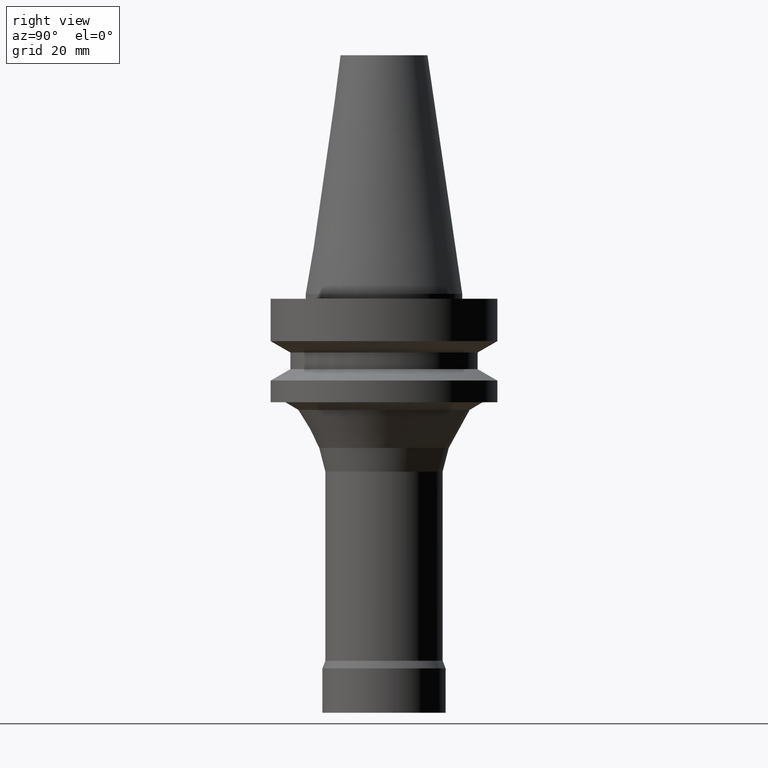
[diagram: clean part render]
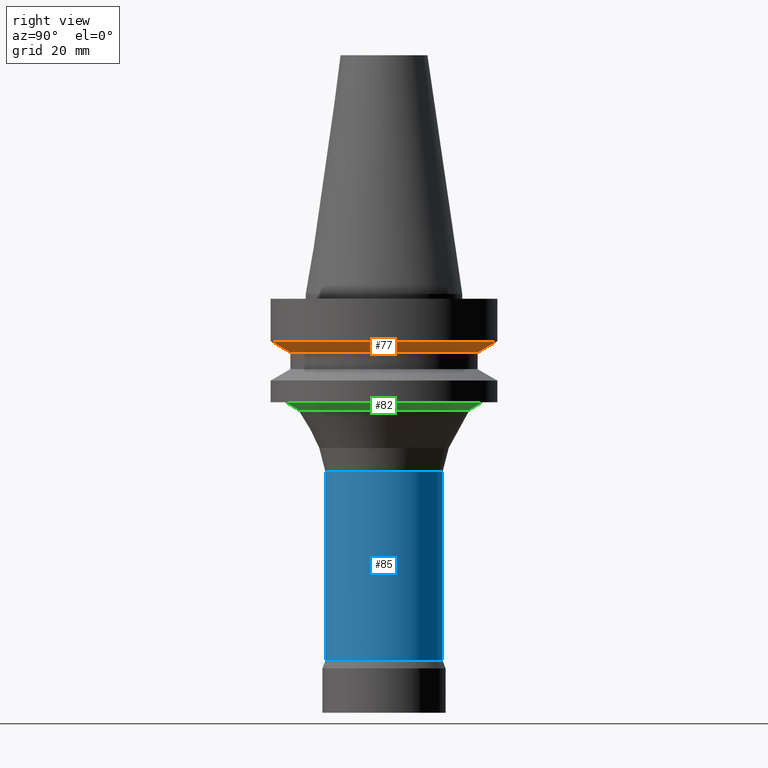
[diagram: same view with three faces highlighted in distinct colors, each labeled with its STEP entity id]
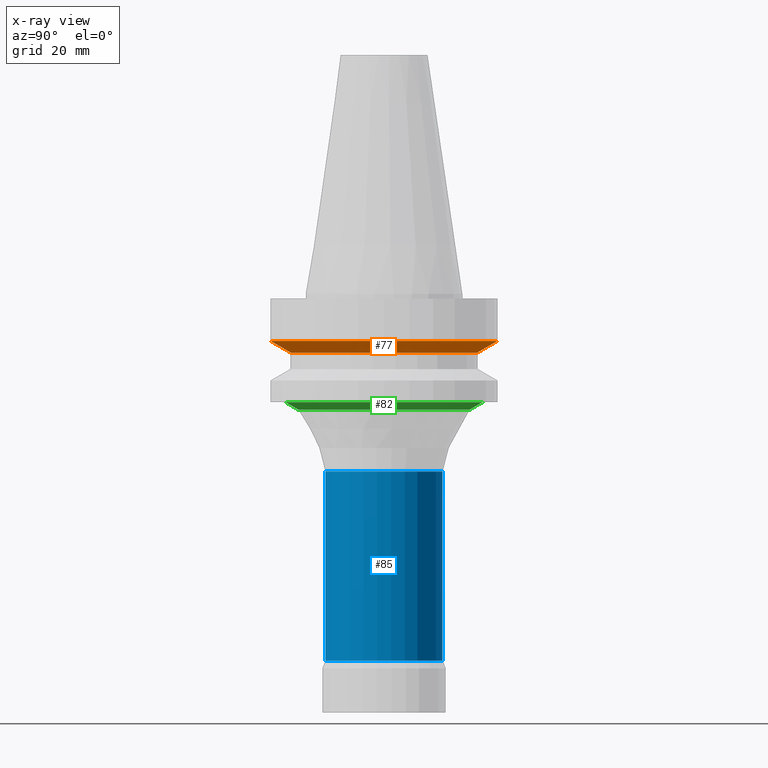
[diagram: x-ray of the same camera — body ghosted, the three highlighted faces saturated]
A machine part, right view with three faces highlighted in distinct colors.
The next image is the same camera in x-ray (body ghosted, the three faces saturated) — at least one of them is partly hidden behind the body in this view.
Their STEP definitions:

[orange] entity #77 — the highlighted conical surface has half-angle 60 deg.
#77=ADVANCED_FACE('',(#99,#100),#101,.T.);
#99=FACE_BOUND('',#148,.T.);
#100=FACE_BOUND('',#149,.T.);
#101=CONICAL_SURFACE('',#150,21.0,1.04719755058882);
#148=EDGE_LOOP('',(#201));
#149=EDGE_LOOP('',(#202));
#150=AXIS2_PLACEMENT_3D('',#203,#204,#205);
#201=ORIENTED_EDGE('',*,*,#277,.F.);
#202=ORIENTED_EDGE('',*,*,#276,.T.);
#203=CARTESIAN_POINT('',(6.58535479604966E-016,1.31707095920993E-015,-10.75470054));
#204=DIRECTION('',(-6.12323399573677E-017,-1.22464679914735E-016,1.0));
#205=DIRECTION('',(-1.23259516440783E-032,1.0,1.22464679914735E-016));
#276=EDGE_CURVE('',#294,#294,#295,.T.);
#277=EDGE_CURVE('',#296,#296,#297,.T.);
#294=VERTEX_POINT('',#326);
#295=CIRCLE('',#327,23.0);
#296=VERTEX_POINT('',#328);
#297=CIRCLE('',#329,19.0);
#326=CARTESIAN_POINT('',(5.87830463590729E-016,23.0,-9.6));
#327=AXIS2_PLACEMENT_3D('',#360,#361,#362);
#328=CARTESIAN_POINT('',(7.29240495619201E-016,19.0,-11.90940108));
#329=AXIS2_PLACEMENT_3D('',#363,#364,#365);
#360=CARTESIAN_POINT('',(5.8783046359073E-016,1.17566092718146E-015,-9.6));
#361=DIRECTION('',(6.12323399573677E-017,1.22464679914735E-016,-1.0));
#362=DIRECTION('',(-1.23259516440783E-032,1.0,1.22464679914735E-016));
#363=CARTESIAN_POINT('',(7.29240495619202E-016,1.4584809912384E-015,-11.90940108));
#364=DIRECTION('',(6.12323399573677E-017,1.22464679914735E-016,-1.0));
#365=DIRECTION('',(-1.23259516440783E-032,1.0,1.22464679914735E-016));

[blue] entity #85 — the highlighted cylindrical surface (bore or boss wall) has radius 11.9 mm, axis along (-0, -0, 1).
#85=ADVANCED_FACE('',(#123,#124),#125,.T.);
#123=FACE_BOUND('',#172,.T.);
#124=FACE_BOUND('',#173,.T.);
#125=CYLINDRICAL_SURFACE('',#174,11.9);
#172=EDGE_LOOP('',(#241));
#173=EDGE_LOOP('',(#242));
#174=AXIS2_PLACEMENT_3D('',#243,#244,#245);
#241=ORIENTED_EDGE('',*,*,#285,.F.);
#242=ORIENTED_EDGE('',*,*,#284,.T.);
#243=CARTESIAN_POINT('',(3.38368564258339E-015,6.76737128516678E-015,-55.259780125));
#244=DIRECTION('',(-6.12323399573677E-017,-1.22464679914735E-016,1.0));
#245=DIRECTION('',(-1.23259516440783E-032,1.0,1.22464679914735E-016));
#284=EDGE_CURVE('',#310,#310,#311,.T.);
#285=EDGE_CURVE('',#312,#312,#313,.T.);
#310=VERTEX_POINT('',#342);
#311=CIRCLE('',#343,11.9);
#312=VERTEX_POINT('',#344);
#313=CIRCLE('',#345,11.9);
#342=CARTESIAN_POINT('',(2.2085926824006E-015,11.9,-36.06905573));
#343=AXIS2_PLACEMENT_3D('',#384,#385,#386);
#344=CARTESIAN_POINT('',(4.55877860276618E-015,11.9,-74.45050452));
#345=AXIS2_PLACEMENT_3D('',#387,#388,#389);
#384=CARTESIAN_POINT('',(2.2085926824006E-015,4.4171853648012E-015,-36.06905573));
#385=DIRECTION('',(6.12323399573677E-017,1.22464679914735E-016,-1.0));
#386=DIRECTION('',(-1.23259516440783E-032,1.0,1.22464679914735E-016));
#387=CARTESIAN_POINT('',(4.55877860276618E-015,9.11755720553235E-015,-74.45050452));
#388=DIRECTION('',(6.12323399573677E-017,1.22464679914735E-016,-1.0));
#389=DIRECTION('',(-1.23259516440783E-032,1.0,1.22464679914735E-016));

[green] entity #82 — the highlighted conical surface has half-angle 59.408 deg.
#82=ADVANCED_FACE('',(#114,#115),#116,.T.);
#114=FACE_BOUND('',#163,.T.);
#115=FACE_BOUND('',#164,.T.);
#116=CONICAL_SURFACE('',#165,18.68574234,1.03686555591075);
#163=EDGE_LOOP('',(#226));
#164=EDGE_LOOP('',(#227));
#165=AXIS2_PLACEMENT_3D('',#228,#229,#230);
#226=ORIENTED_EDGE('',*,*,#282,.F.);
#227=ORIENTED_EDGE('',*,*,#281,.T.);
#228=CARTESIAN_POINT('',(1.39468910028212E-015,2.78937820056424E-015,-22.77700152));
#229=DIRECTION('',(-6.12323399573677E-017,-1.22464679914735E-016,1.0));
#230=DIRECTION('',(-1.23259516440783E-032,1.0,1.22464679914735E-016));
#281=EDGE_CURVE('',#304,#304,#305,.T.);
#282=EDGE_CURVE('',#306,#306,#307,.T.);
#304=VERTEX_POINT('',#336);
#305=CIRCLE('',#337,20.0);
#306=VERTEX_POINT('',#338);
#307=CIRCLE('',#339,17.37148468);
#336=CARTESIAN_POINT('',(1.34711147906209E-015,20.0,-22.0));
#337=AXIS2_PLACEMENT_3D('',#375,#376,#377);
#338=CARTESIAN_POINT('',(1.44226672150215E-015,17.37148468,-23.55400304));
#339=AXIS2_PLACEMENT_3D('',#378,#379,#380);
#375=CARTESIAN_POINT('',(1.34711147906209E-015,2.69422295812418E-015,-22.0));
#376=DIRECTION('',(6.12323399573677E-017,1.22464679914735E-016,-1.0));
#377=DIRECTION('',(-1.23259516440783E-032,1.0,1.22464679914735E-016));
#378=CARTESIAN_POINT('',(1.44226672150215E-015,2.8845334430043E-015,-23.55400304));
#379=DIRECTION('',(6.12323399573677E-017,1.22464679914735E-016,-1.0));
#380=DIRECTION('',(-1.23259516440783E-032,1.0,1.22464679914735E-016));